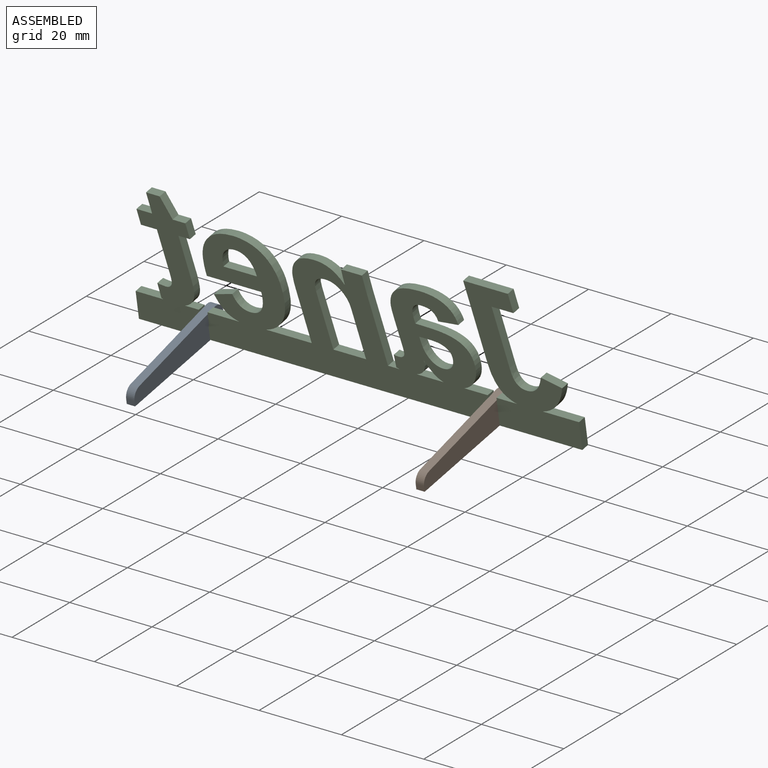
[diagram: assembled view]
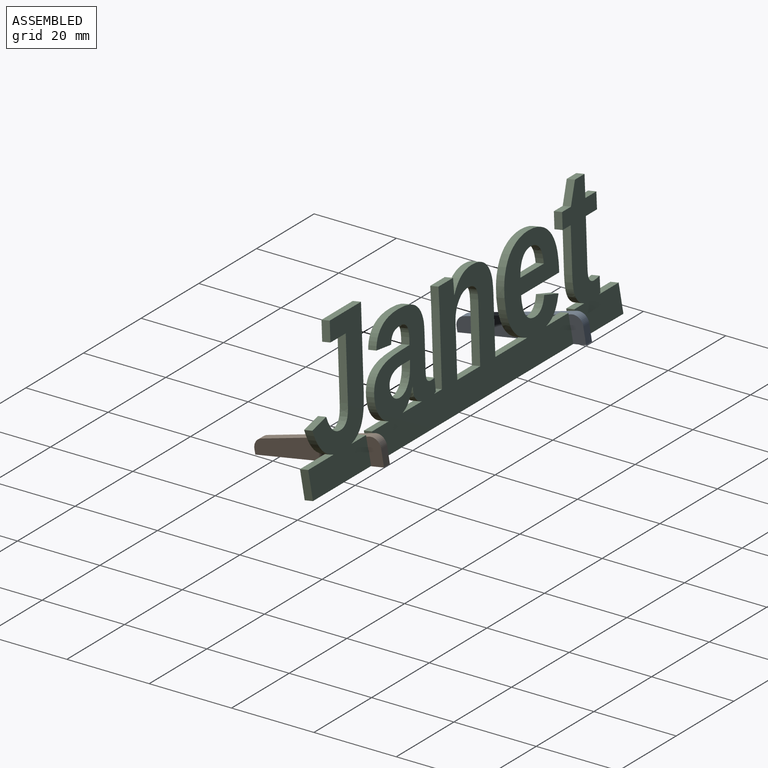
[diagram: assembled view, second angle]
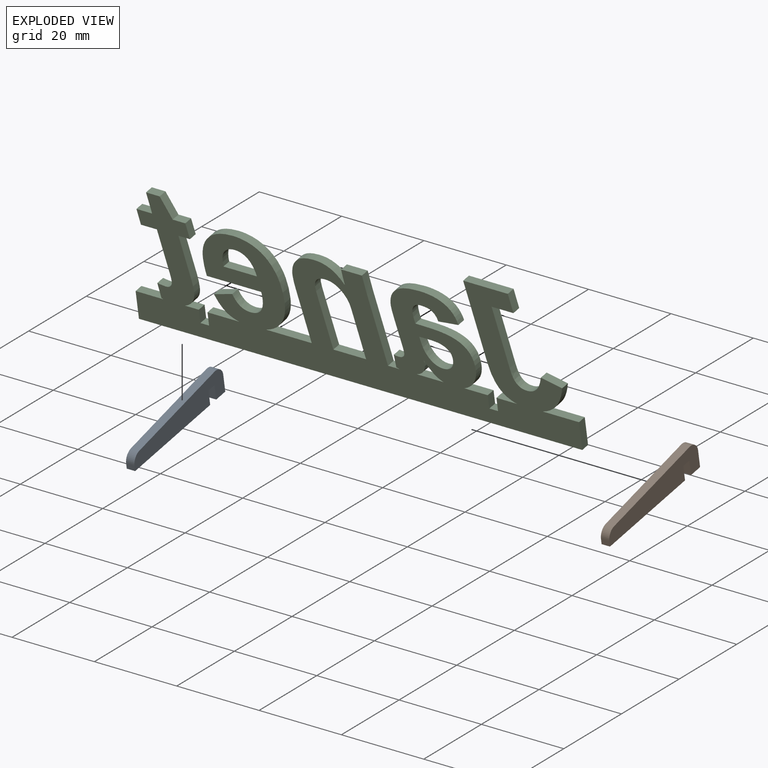
[diagram: exploded view]
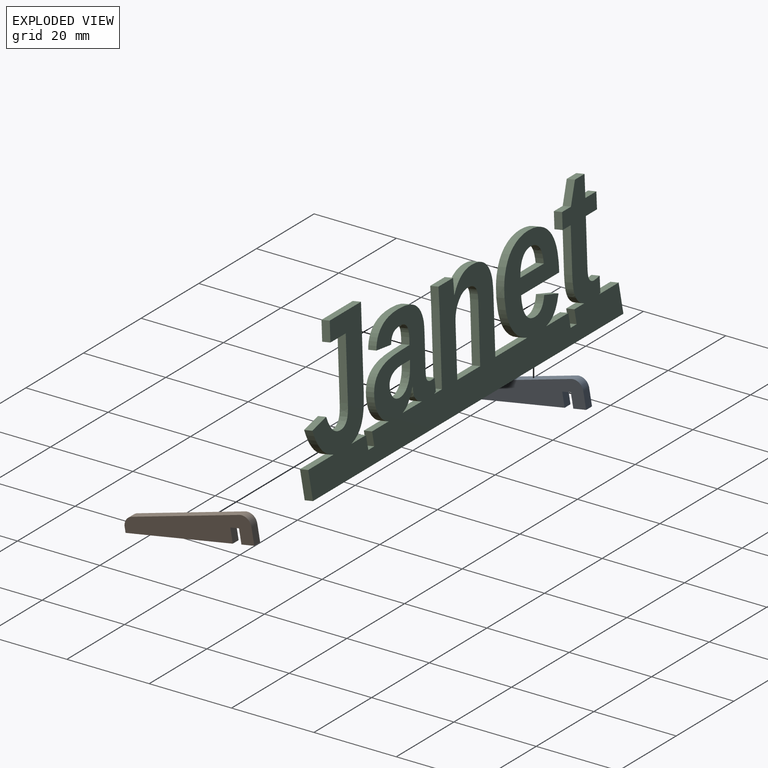
[diagram: exploded view, second angle]
ASSEMBLY  parts=3 mates=7
PART A: 12 faces, bbox 2x31.8x6.4 mm
  f0: plane 2.13x2.03mm, normal (0,0,-1), area 4.3mm2, adj f1,f9,f10,f11
  f1: plane 3.45x2.03mm, normal (0,-1,0), area 7mm2, adj f0,f2,f10,f11
  f2: plane 3.18x2.03mm, normal (0,0,-1), area 6.5mm2, adj f1,f3,f10,f11
  f3: plane 4.01x2.03mm, normal (0,1,0), area 8.2mm2, adj f2,f4,f10,f11
  f4: cylinder r=2.36mm len=2.6mm, axis (-1,0,0), area 8mm2, adj f3,f5,f10,f11
  f5: plane 27.03x2.75mm, normal (0,-0.1,0.99), area 55.2mm2, adj f4,f6,f10,f11
  f6: cylinder r=2.36mm len=2.35mm, axis (-1,0,0), area 7.1mm2, adj f5,f7,f10,f11
  f7: plane 2.03x1.26mm, normal (0,-1,0), area 2.6mm2, adj f6,f8,f10,f11
  f8: plane 26.44x2.03mm, normal (0,0,-1), area 53.7mm2, adj f7,f9,f10,f11
  f9: plane 3.45x2.03mm, normal (0,1,0), area 7mm2, adj f0,f8,f10,f11
  f10: plane 31.75x6.37mm, normal (1,0,0), area 149.2mm2, adj f0,f1,f2,f3,f4,f5,f6,f7
  f11: plane 31.75x6.37mm, normal (-1,0,0), area 149.2mm2, adj f0,f1,f2,f3,f4,f5,f6,f7
PART B: same geometry as A
PART C: 134 faces, bbox 107.7x7.8x33.1 mm
  f0: plane 5.73x2mm, normal (0,-0.17,0.98), area 11.6mm2, adj f16,f17,f50,f133
  f1: plane 3.42x2mm, normal (0,-0.17,0.98), area 6.9mm2, adj f16,f17,f103,f130
  f2: extruded ~2.75x2.25mm, area 6.3mm2, adj f15,f16,f17,f18
  f3: extruded ~3.13x2.28mm, area 7.2mm2, adj f4,f16,f17,f58
  f4: extruded ~6.62x3.12mm, area 14.6mm2, adj f3,f5,f16,f17
  f5: plane 18.67x5.23mm, normal (-0.98,0.03,-0.19), area 38.5mm2, adj f4,f6,f16,f17
  f6: plane 10.85x2mm, normal (0,-0.17,0.98), area 22mm2, adj f5,f7,f16,f17
  f7: plane 4.65x2.76mm, normal (0.98,-0.03,0.18), area 9mm2, adj f6,f8,f16,f17
  f8: plane 5.31x2mm, normal (0,0.17,-0.98), area 10.8mm2, adj f7,f9,f16,f17
  f9: plane 14.06x4.42mm, normal (0.98,-0.03,0.19), area 28.8mm2, adj f8,f10,f16,f17
  f10: extruded ~2.9x2.45mm, area 5.5mm2, adj f9,f11,f16,f17
  f11: extruded ~2.22x1.62mm, area 3.5mm2, adj f10,f12,f16,f17
  f12: extruded ~2.08x1.72mm, area 3.7mm2, adj f11,f13,f16,f17
  f13: extruded ~4.56x3.9mm, area 12.9mm2, adj f12,f14,f16,f17
  f14: plane 5.04x2.19mm, normal (0.21,-0.17,0.96), area 10.5mm2, adj f13,f15,f16,f17
  f15: extruded ~5.98x2.99mm, area 13.2mm2, adj f2,f14,f16,f17
  f16: plane 107.69x32.71mm, normal (0,0.98,0.17), area 1811.1mm2, adj f0,f1,f2,f3,f4,f5,f6,f7
  f17: plane 107.69x32.71mm, normal (0,-0.98,-0.17), area 1811.1mm2, adj f0,f1,f2,f3,f4,f5,f6,f7
  f18: plane 8.83x2mm, normal (0,-0.17,0.98), area 17.9mm2, adj f2,f16,f17,f125
  f19: plane 3.06x2mm, normal (0,0.17,-0.98), area 6.2mm2, adj f16,f17,f20,f56
  f20: plane 2.3x2.07mm, normal (0.97,-0.04,0.23), area 3.6mm2, adj f16,f17,f19,f21
  f21: extruded ~3.52x2.56mm, area 7.6mm2, adj f16,f17,f20,f22
  f22: extruded ~2.85x2.21mm, area 6.5mm2, adj f16,f17,f21,f23
  f23: extruded ~2.13x2.01mm, area 4.5mm2, adj f16,f17,f22,f24
  f24: extruded ~2.39x2.36mm, area 4.6mm2, adj f16,f17,f23,f25
  f25: extruded ~2.77x2.43mm, area 5.9mm2, adj f16,f17,f24,f56
  f26: extruded ~2.11x1.28mm, area 2.9mm2, adj f16,f17,f55,f57
  f27: extruded ~2.04x0.73mm, area 1.6mm2, adj f16,f17,f28,f102
  f28: plane 3.23x2.51mm, normal (-1,0.02,-0.09), area 6mm2, adj f16,f17,f27,f29
  f29: extruded ~2.02x1.17mm, area 2.4mm2, adj f16,f17,f28,f30
  f30: extruded ~2.01x0.38mm, area 0.8mm2, adj f16,f17,f29,f31
  f31: extruded ~2.03x0.49mm, area 1mm2, adj f16,f17,f30,f32
  f32: extruded ~2.06x0.71mm, area 1.2mm2, adj f16,f17,f31,f33
  f33: extruded ~2.12x1.04mm, area 1.5mm2, adj f16,f17,f32,f34
  f34: extruded ~2.24x1.69mm, area 2.8mm2, adj f16,f17,f33,f35
  f35: plane 6.91x3.16mm, normal (-0.98,0.03,-0.19), area 13.8mm2, adj f16,f17,f34,f36
  f36: extruded ~3.27x2.52mm, area 6.1mm2, adj f16,f17,f35,f37
  f37: extruded ~4.48x2.73mm, area 9.6mm2, adj f16,f17,f36,f38
  f38: extruded ~5.73x2.24mm, area 12.2mm2, adj f16,f17,f37,f39
  f39: extruded ~5.99x2.25mm, area 12.7mm2, adj f16,f17,f38,f40
  f40: extruded ~4.42x2.9mm, area 10.5mm2, adj f16,f17,f39,f41
  f41: plane 4.96x2.1mm, normal (0.12,0.17,-0.98), area 10.2mm2, adj f16,f17,f40,f42
  f42: extruded ~2.35x2.32mm, area 4.8mm2, adj f16,f17,f41,f43
  f43: extruded ~2.64x2.12mm, area 5.7mm2, adj f16,f17,f42,f44
  f44: extruded ~2.73x2.42mm, area 7.9mm2, adj f16,f17,f43,f45
  f45: extruded ~2.79x2.43mm, area 5.1mm2, adj f16,f17,f44,f46
  f46: plane 3.6x2.01mm, normal (0.02,-0.17,0.98), area 7.3mm2, adj f16,f17,f45,f47
  f47: extruded ~7.8x2.33mm, area 16.6mm2, adj f16,f17,f46,f48
  f48: extruded ~5.55x2.92mm, area 12.3mm2, adj f16,f17,f47,f49
  f49: extruded ~4.34x2.7mm, area 9.1mm2, adj f16,f17,f48,f50
  f50: extruded ~2.21x1.88mm, area 4.6mm2, adj f0,f16,f17,f49
  f51: extruded ~2.09x1.19mm, area 2.7mm2, adj f16,f17,f52,f57
  f52: extruded ~3.67x3.13mm, area 9.4mm2, adj f16,f17,f51,f53
  f53: plane 2x0.35mm, normal (0,0.17,-0.98), area 0.2mm2, adj f16,f17,f52,f54
  f54: extruded ~2.21x1.54mm, area 2.5mm2, adj f16,f17,f53,f55
  f55: extruded ~2.42x2.37mm, area 4.9mm2, adj f16,f17,f26,f54
  f56: extruded ~3.48x2.16mm, area 7.4mm2, adj f16,f17,f19,f25
  f57: plane 6.64x2mm, normal (0,-0.17,0.98), area 13.5mm2, adj f16,f17,f26,f51
  f58: plane 5.03x2mm, normal (0,-0.17,0.98), area 10.2mm2, adj f3,f16,f17,f131
  f59: plane 11.41x3.95mm, normal (0.98,-0.03,0.19), area 23.3mm2, adj f16,f17,f77,f79
  f60: plane 12.49x4.14mm, normal (-0.98,0.03,-0.19), area 25.5mm2, adj f16,f17,f61,f78
  f61: extruded ~2.28x1.92mm, area 3.3mm2, adj f16,f17,f60,f62
  f62: extruded ~2.26x1.83mm, area 3.1mm2, adj f16,f17,f61,f63
  f63: extruded ~4.27x2.69mm, area 8.9mm2, adj f16,f17,f62,f64
  f64: extruded ~4.32x2.24mm, area 9.4mm2, adj f16,f17,f63,f65
  f65: extruded ~3.91x2.17mm, area 8.3mm2, adj f16,f17,f64,f66
  f66: extruded ~3.22x3.12mm, area 8.7mm2, adj f16,f17,f65,f67
  f67: plane 2x0.35mm, normal (0,-0.17,0.98), area 0.1mm2, adj f16,f17,f66,f68
  f68: extruded ~2.33x2.23mm, area 3.9mm2, adj f16,f17,f67,f69
  f69: extruded ~2.28x1.91mm, area 3.2mm2, adj f16,f17,f68,f70
  f70: plane 5.05x2mm, normal (0,-0.17,0.98), area 10.3mm2, adj f16,f17,f69,f71
  f71: extruded ~4.65x2.76mm, area 9mm2, adj f16,f17,f70,f72
  f72: plane 16.16x4.79mm, normal (0.98,-0.03,0.19), area 33.2mm2, adj f16,f17,f71,f102
  f73: plane 11.62x3.99mm, normal (-0.98,0.03,-0.19), area 23.7mm2, adj f16,f17,f74,f79
  f74: extruded ~4.09x2.66mm, area 8.9mm2, adj f16,f17,f73,f75
  f75: extruded ~3.53x2.27mm, area 8mm2, adj f16,f17,f74,f76
  f76: extruded ~2.87x2.75mm, area 8.8mm2, adj f16,f17,f75,f77
  f77: extruded ~3.42x2.54mm, area 6.4mm2, adj f16,f17,f59,f76
  f78: plane 11.1x2mm, normal (0,-0.17,0.98), area 22.6mm2, adj f16,f17,f60,f94
  f79: plane 7.94x2mm, normal (0,-0.17,0.98), area 16.1mm2, adj f16,f17,f59,f73
  f80: plane 2.18x1.39mm, normal (1,-0.01,0.05), area 2.1mm2, adj f16,f17,f81,f101
  f81: plane 8.13x2mm, normal (0,-0.17,0.98), area 16.5mm2, adj f16,f17,f80,f82
  f82: extruded ~3.97x2.64mm, area 8.4mm2, adj f16,f17,f81,f83
  f83: extruded ~3.05x2.22mm, area 6.9mm2, adj f16,f17,f82,f84
  f84: extruded ~2.44x2.16mm, area 5.5mm2, adj f16,f17,f83,f101
  f85: extruded ~2.29x2.01mm, area 3.4mm2, adj f16,f17,f86,f100
  f86: plane 13.21x2mm, normal (0,0.17,-0.98), area 26.8mm2, adj f16,f17,f85,f87
  f87: extruded ~4.34x2.7mm, area 8.3mm2, adj f16,f17,f86,f88
  f88: extruded ~6x3mm, area 12.8mm2, adj f16,f17,f87,f89
  f89: extruded ~6.08x2.35mm, area 13.4mm2, adj f16,f17,f88,f90
  f90: extruded ~5.78x2.27mm, area 12.3mm2, adj f16,f17,f89,f91
  f91: extruded ~4.79x3.86mm, area 12.2mm2, adj f16,f17,f90,f92
  f92: extruded ~7.09x3.19mm, area 14.3mm2, adj f16,f17,f91,f93
  f93: extruded ~6.35x3.06mm, area 13.6mm2, adj f16,f17,f92,f94
  f94: extruded ~3.23x2.31mm, area 7.6mm2, adj f16,f17,f78,f93
  f95: extruded ~2.14x2.04mm, area 4.5mm2, adj f16,f17,f96,f123
  f96: extruded ~4.46x3.51mm, area 11.3mm2, adj f16,f17,f95,f97
  f97: plane 4.62x2.24mm, normal (-0.29,-0.17,0.94), area 9.8mm2, adj f16,f17,f96,f98
  f98: extruded ~4.02x3.49mm, area 11.2mm2, adj f16,f17,f97,f99
  f99: extruded ~2.59x2.19mm, area 5.9mm2, adj f16,f17,f98,f100
  f100: extruded ~3.37x2.53mm, area 6.6mm2, adj f16,f17,f85,f99
  f101: extruded ~3.25x2.51mm, area 6.4mm2, adj f16,f17,f80,f84
  f102: plane 2.78x2mm, normal (0,-0.17,0.98), area 5.7mm2, adj f16,f17,f27,f72
  f103: extruded ~2.14x1.47mm, area 3.4mm2, adj f1,f16,f17,f122
  f104: extruded ~2.03x0.57mm, area 1.2mm2, adj f16,f17,f105,f124
  f105: plane 3.74x2.6mm, normal (-0.98,0.03,-0.17), area 7.1mm2, adj f16,f17,f104,f106
  f106: extruded ~2.04x2.03mm, area 4.2mm2, adj f16,f17,f105,f107
  f107: extruded ~2.08x1.2mm, area 2.7mm2, adj f16,f17,f106,f108
  f108: extruded ~2.23x1.63mm, area 2.9mm2, adj f16,f17,f107,f109
  f109: extruded ~2.29x2.01mm, area 3.4mm2, adj f16,f17,f108,f110
  f110: plane 10.3x3.75mm, normal (-0.98,0.03,-0.19), area 20.9mm2, adj f16,f17,f109,f111
  f111: plane 3.87x2mm, normal (0,0.17,-0.98), area 7.9mm2, adj f16,f17,f110,f112
  f112: plane 3.88x2.62mm, normal (-0.98,0.03,-0.18), area 7.4mm2, adj f16,f17,f111,f113
  f113: plane 3.81x2mm, normal (0,-0.17,0.98), area 7.7mm2, adj f16,f17,f112,f114
  f114: plane 5.07x2.83mm, normal (-0.98,0.03,-0.18), area 9.9mm2, adj f16,f17,f113,f115
  f115: plane 3.32x2mm, normal (0,-0.17,0.98), area 6.7mm2, adj f16,f17,f114,f116
  f116: plane 5.07x2.83mm, normal (0.88,-0.08,0.47), area 11.1mm2, adj f16,f17,f115,f117
  f117: plane 3.06x2mm, normal (0,-0.17,0.98), area 6.2mm2, adj f16,f17,f116,f118
  f118: plane 3.88x2.62mm, normal (0.98,-0.03,0.19), area 7.4mm2, adj f16,f17,f117,f119
  f119: plane 2.79x2mm, normal (0,0.17,-0.98), area 5.7mm2, adj f16,f17,f118,f120
  f120: plane 10.13x3.73mm, normal (0.98,-0.03,0.19), area 20.5mm2, adj f16,f17,f119,f121
  f121: extruded ~3.27x2.52mm, area 6.1mm2, adj f16,f17,f120,f122
  f122: extruded ~3.45x2.55mm, area 7.1mm2, adj f16,f17,f103,f121
  f123: plane 7.72x2mm, normal (0,-0.17,0.98), area 15.7mm2, adj f16,f17,f95,f128
  f124: plane 6.88x2mm, normal (0,-0.17,0.98), area 14mm2, adj f16,f17,f104,f127
  f125: plane 6.88x3.15mm, normal (1,0,0), area 13.5mm2, adj f16,f17,f18,f126
  f126: plane 107.69x2mm, normal (0,0.17,-0.98), area 218.8mm2, adj f16,f17,f125,f127
  f127: plane 6.88x3.15mm, normal (-1,0,0), area 13.5mm2, adj f16,f17,f124,f126
  f128: plane 3.48x2.55mm, normal (-1,0,0), area 6.5mm2, adj f16,f17,f123,f129
  f129: plane 2.11x2mm, normal (0,-0.17,0.98), area 4.3mm2, adj f16,f17,f128,f130
  f130: plane 3.48x2.55mm, normal (1,0,0), area 6.5mm2, adj f1,f16,f17,f129
  f131: plane 3.48x2.55mm, normal (-1,0,0), area 6.5mm2, adj f16,f17,f58,f132
  f132: plane 2.11x2mm, normal (0,-0.17,0.98), area 4.3mm2, adj f16,f17,f131,f133
  f133: plane 3.48x2.55mm, normal (1,0,0), area 6.5mm2, adj f0,f16,f17,f132
PLACE A rot(axis=(1,0,0),10deg) t=(15.35,49.61,2.02)mm
PLACE B rot(axis=(1,0,0),10deg) t=(85.61,49.71,2.04)mm
PLACE C at identity
MATE planar B.f4 <-> C.f131  axis (1,0,0) through (87.64,3.36,-2.06)mm
MATE parallel A.f2 <-> C.f126  axis (0,0.17,-0.98) through (16.36,4.72,-5.9)mm
MATE planar B.f8 <-> C.f126  axis (0,0.17,-0.98) through (87.64,1.15,-6.53)mm
MATE planar A.f11 <-> C.f130  axis (-1,0,0) through (15.35,-8.63,-5.61)mm
MATE planar B.f9 <-> C.f17  axis (0,0.98,0.17) through (86.63,0.85,-4.83)mm
MATE parallel A.f10 <-> C.f128  axis (1,0,0) through (17.38,-8.63,-5.61)mm
MATE planar A.f2 <-> C.f126  axis (0,0.17,-0.98) through (16.36,4.72,-5.9)mm
